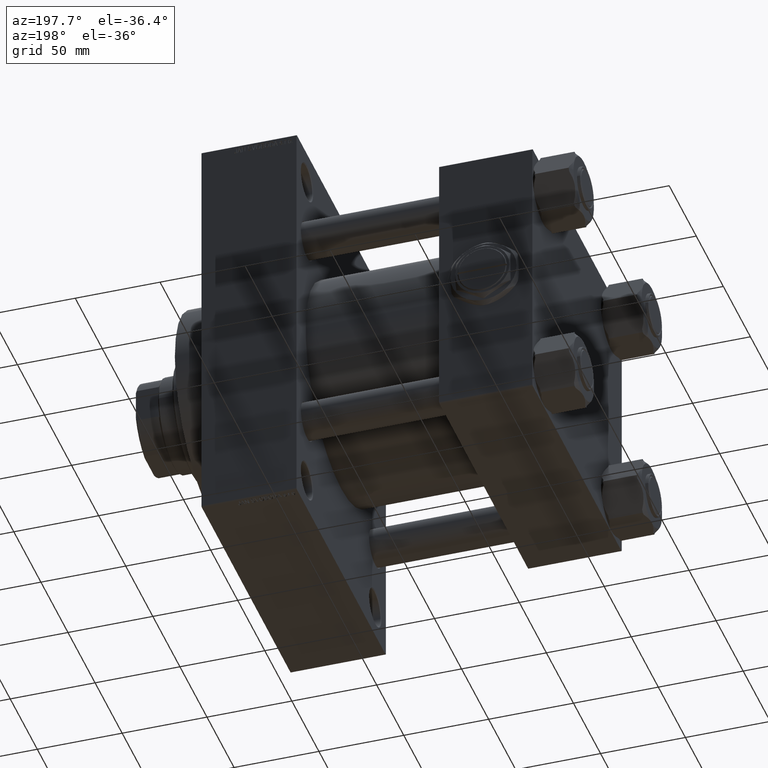
[diagram: clean part render]
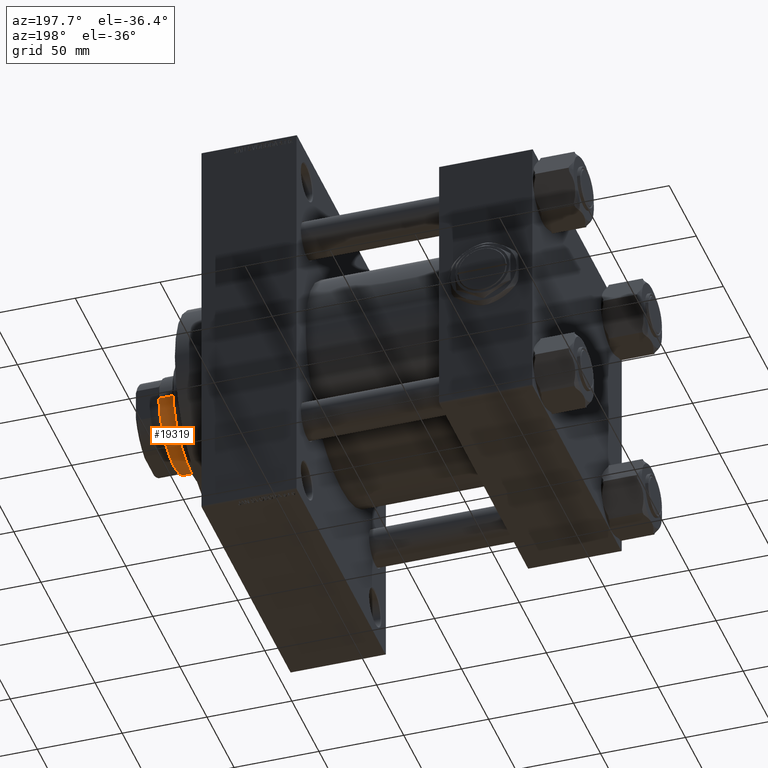
[diagram: same view with one face highlighted and labeled with its STEP entity id]
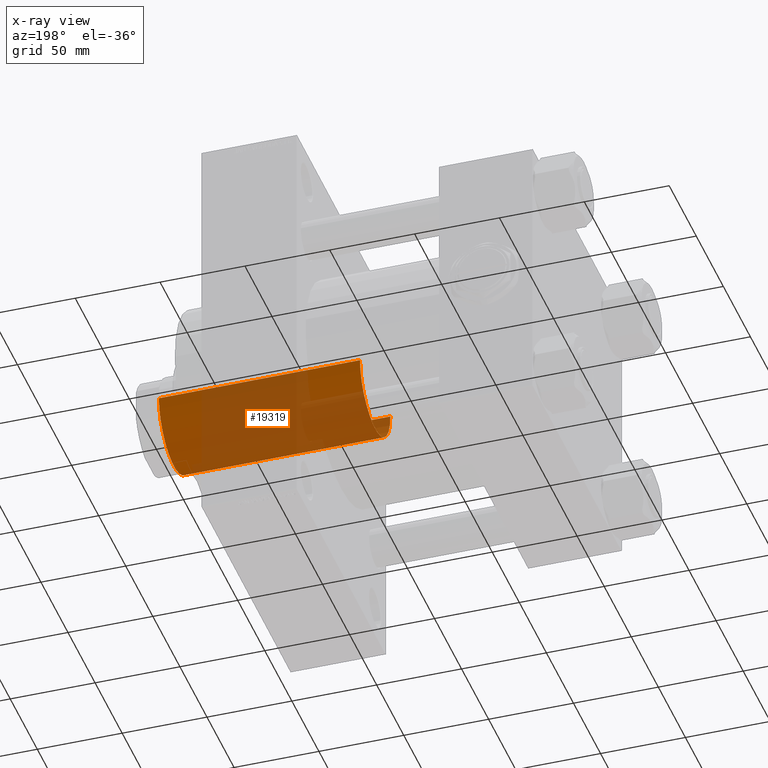
[diagram: x-ray of the same camera — body ghosted, the highlighted face saturated]
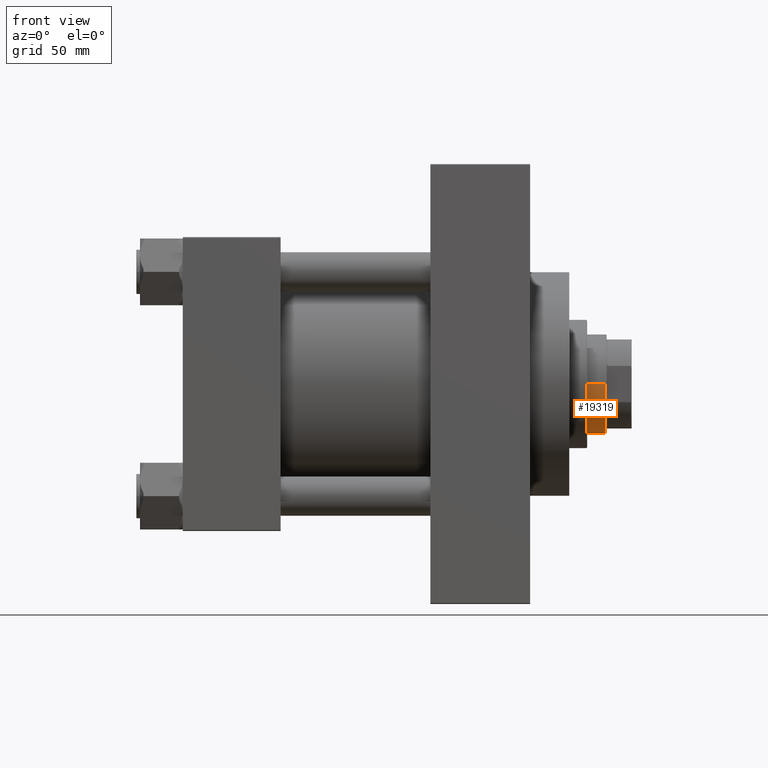
[diagram: same view with one face highlighted and labeled with its STEP entity id]
A machine part, auxiliary view. The second image highlights one B-rep face of the part: STEP entity #19319.
The next image is the same camera in x-ray: the body ghosted, the highlighted face saturated — about 73% of this face is hidden behind the body in this view.
A second angle (front view) of the same face is appended — the face is thin or edge-on in the first view.
In plain terms, the highlighted cylindrical surface (partial cylindrical patch) has radius 28 mm, axis along (-1, 0, 0).
Its self-contained STEP definition (entity closure, byte-faithful):
#1661 = DIRECTION ( 'NONE',  ( 1.000000000000000000, 0.000000000000000000, 0.000000000000000000 ) ) ;
#6556 = CARTESIAN_POINT ( 'NONE',  ( -28.00000000000000000, 0.000000000000000000, 183.0000000000000000 ) ) ;
#7507 = CARTESIAN_POINT ( 'NONE',  ( 0.000000000000000000, 0.000000000000000000, 64.00000000000000000 ) ) ;
#8642 = EDGE_CURVE ( 'NONE', #15007, #34534, #27285, .T. ) ;
#9949 = VERTEX_POINT ( 'NONE', #32044 ) ;
#10639 = ORIENTED_EDGE ( 'NONE', *, *, #8642, .T. ) ;
#10910 = DIRECTION ( 'NONE',  ( -0.000000000000000000, -0.000000000000000000, -1.000000000000000000 ) ) ;
#11693 = EDGE_CURVE ( 'NONE', #48397, #15007, #36120, .T. ) ;
#12583 = AXIS2_PLACEMENT_3D ( 'NONE', #32134, #47403, #38907 ) ;
#15007 = VERTEX_POINT ( 'NONE', #25145 ) ;
#15024 = LINE ( 'NONE', #6556, #38546 ) ;
#19319 = ADVANCED_FACE ( 'NONE', ( #43668 ), #43154, .T. ) ;
#20169 = DIRECTION ( 'NONE',  ( 0.000000000000000000, 0.000000000000000000, -1.000000000000000000 ) ) ;
#21179 = AXIS2_PLACEMENT_3D ( 'NONE', #39451, #20169, #1661 ) ;
#22556 = DIRECTION ( 'NONE',  ( -0.000000000000000000, -0.000000000000000000, -1.000000000000000000 ) ) ;
#23530 = CARTESIAN_POINT ( 'NONE',  ( 28.00000000000000000, 3.429011037612589276E-15, 183.0000000000000000 ) ) ;
#24066 = EDGE_LOOP ( 'NONE', ( #48978, #10639, #35759, #27699 ) ) ;
#25145 = CARTESIAN_POINT ( 'NONE',  ( 28.00000000000000000, 3.429011037612589276E-15, 182.4999999999999716 ) ) ;
#26533 = CIRCLE ( 'NONE', #30529, 28.00000000000000000 ) ;
#27285 = LINE ( 'NONE', #23530, #31516 ) ;
#27699 = ORIENTED_EDGE ( 'NONE', *, *, #33630, .F. ) ;
#30055 = DIRECTION ( 'NONE',  ( 1.000000000000000000, 0.000000000000000000, 0.000000000000000000 ) ) ;
#30529 = AXIS2_PLACEMENT_3D ( 'NONE', #7507, #45798, #30055 ) ;
#31516 = VECTOR ( 'NONE', #10910, 1000.000000000000000 ) ;
#32044 = CARTESIAN_POINT ( 'NONE',  ( -28.00000000000000000, 0.000000000000000000, 64.00000000000000000 ) ) ;
#32134 = CARTESIAN_POINT ( 'NONE',  ( 0.000000000000000000, 0.000000000000000000, 183.0000000000000000 ) ) ;
#33630 = EDGE_CURVE ( 'NONE', #48397, #9949, #15024, .T. ) ;
#34534 = VERTEX_POINT ( 'NONE', #48119 ) ;
#35069 = CARTESIAN_POINT ( 'NONE',  ( -28.00000000000000000, 0.000000000000000000, 182.4999999999999716 ) ) ;
#35759 = ORIENTED_EDGE ( 'NONE', *, *, #40896, .T. ) ;
#36120 = CIRCLE ( 'NONE', #21179, 28.00000000000000000 ) ;
#38546 = VECTOR ( 'NONE', #22556, 1000.000000000000000 ) ;
#38907 = DIRECTION ( 'NONE',  ( -1.000000000000000000, 0.000000000000000000, 0.000000000000000000 ) ) ;
#39451 = CARTESIAN_POINT ( 'NONE',  ( 0.000000000000000000, 0.000000000000000000, 182.4999999999999716 ) ) ;
#40896 = EDGE_CURVE ( 'NONE', #34534, #9949, #26533, .T. ) ;
#43154 = CYLINDRICAL_SURFACE ( 'NONE', #12583, 28.00000000000000000 ) ;
#43668 = FACE_OUTER_BOUND ( 'NONE', #24066, .T. ) ;
#45798 = DIRECTION ( 'NONE',  ( 0.000000000000000000, 0.000000000000000000, 1.000000000000000000 ) ) ;
#47403 = DIRECTION ( 'NONE',  ( -0.000000000000000000, -0.000000000000000000, -1.000000000000000000 ) ) ;
#48119 = CARTESIAN_POINT ( 'NONE',  ( 28.00000000000000000, 3.429011037612589276E-15, 64.00000000000000000 ) ) ;
#48397 = VERTEX_POINT ( 'NONE', #35069 ) ;
#48978 = ORIENTED_EDGE ( 'NONE', *, *, #11693, .T. ) ;